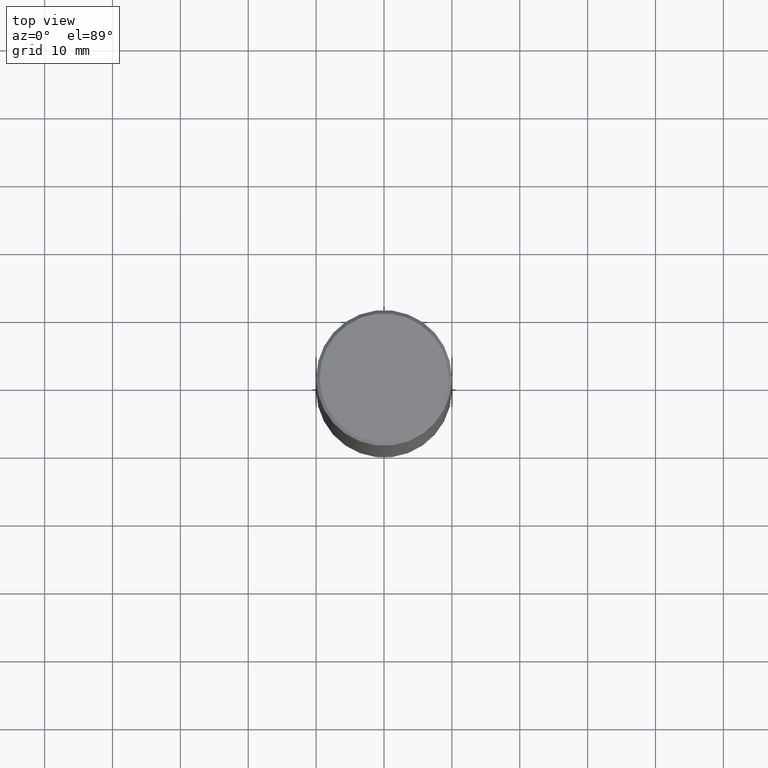
[diagram: clean part render]
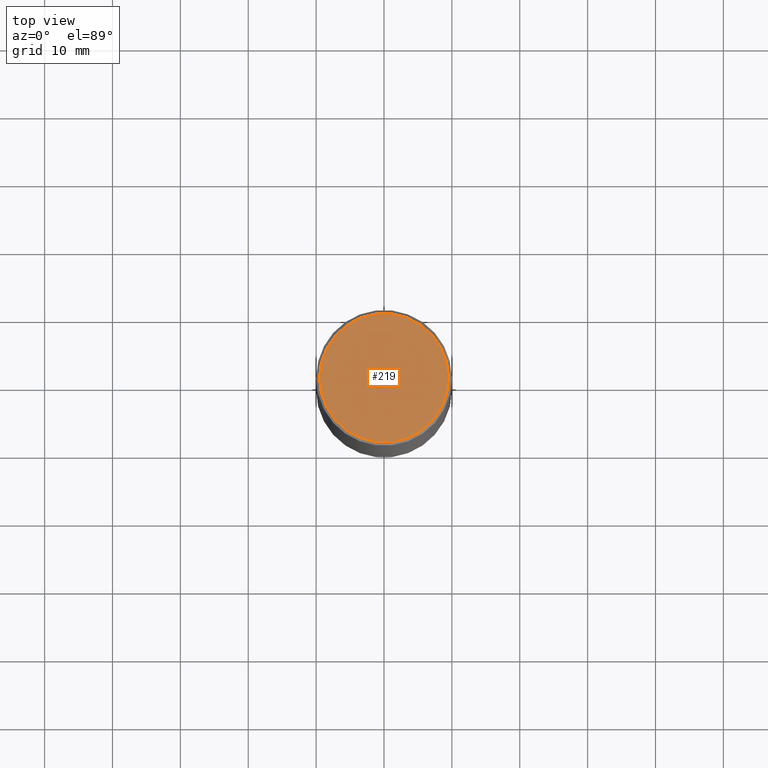
[diagram: same view with one face highlighted and labeled with its STEP entity id]
A machine part, top view. The second image highlights one B-rep face of the part: STEP entity #219.
In plain terms, the highlighted planar face has unit normal (0, -0, -1).
Its self-contained STEP definition (entity closure, byte-faithful):
#23 = DIRECTION ( 'NONE',  ( -2.445468806185136597E-29, 3.491481338843145583E-15, 1.000000000000000000 ) ) ;
#32 = CARTESIAN_POINT ( 'NONE',  ( 0.3736999999999997546, -2.667287895133366781E-15, 2.219626494852398384E-16 ) ) ;
#45 = CIRCLE ( 'NONE', #264, 0.3736999999999997546 ) ;
#52 = DIRECTION ( 'NONE',  ( -1.000000000000000000, 6.982962677686265922E-15, -4.876176775795935793E-29 ) ) ;
#64 = EDGE_LOOP ( 'NONE', ( #133, #121 ) ) ;
#85 = CARTESIAN_POINT ( 'NONE',  ( -5.428027354543142984E-45, 7.749784485978325769E-31, 2.219626494852213988E-16 ) ) ;
#94 = PLANE ( 'NONE',  #348 ) ;
#121 = ORIENTED_EDGE ( 'NONE', *, *, #129, .T. ) ;
#128 = CARTESIAN_POINT ( 'NONE',  ( 2.609533152651355831E-15, 0.3736999999999997546, -1.193785251583072147E-15 ) ) ;
#129 = EDGE_CURVE ( 'NONE', #379, #188, #296, .T. ) ;
#133 = ORIENTED_EDGE ( 'NONE', *, *, #191, .T. ) ;
#188 = VERTEX_POINT ( 'NONE', #415 ) ;
#191 = EDGE_CURVE ( 'NONE', #188, #379, #45, .T. ) ;
#215 = FACE_OUTER_BOUND ( 'NONE', #64, .T. ) ;
#219 = ADVANCED_FACE ( 'NONE', ( #215 ), #94, .F. ) ;
#223 = DIRECTION ( 'NONE',  ( 1.000000000000000000, -6.982962677686266711E-15, 4.877734241229879050E-29 ) ) ;
#264 = AXIS2_PLACEMENT_3D ( 'NONE', #85, #275, #309 ) ;
#271 = CARTESIAN_POINT ( 'NONE',  ( -5.428027354543142984E-45, 7.749784485978325769E-31, 2.219626494852213988E-16 ) ) ;
#275 = DIRECTION ( 'NONE',  ( -2.445468806185136597E-29, 3.491481338843145583E-15, 1.000000000000000000 ) ) ;
#280 = AXIS2_PLACEMENT_3D ( 'NONE', #271, #23, #223 ) ;
#296 = CIRCLE ( 'NONE', #280, 0.3736999999999997546 ) ;
#309 = DIRECTION ( 'NONE',  ( 1.000000000000000000, -6.982962677686266711E-15, 4.877734241229879050E-29 ) ) ;
#340 = DIRECTION ( 'NONE',  ( 2.438088387897960049E-29, -3.491481338843145188E-15, -1.000000000000000000 ) ) ;
#348 = AXIS2_PLACEMENT_3D ( 'NONE', #128, #340, #52 ) ;
#379 = VERTEX_POINT ( 'NONE', #32 ) ;
#415 = CARTESIAN_POINT ( 'NONE',  ( -0.3736999999999997546, 2.644447966039789058E-15, 2.219626494852030085E-16 ) ) ;